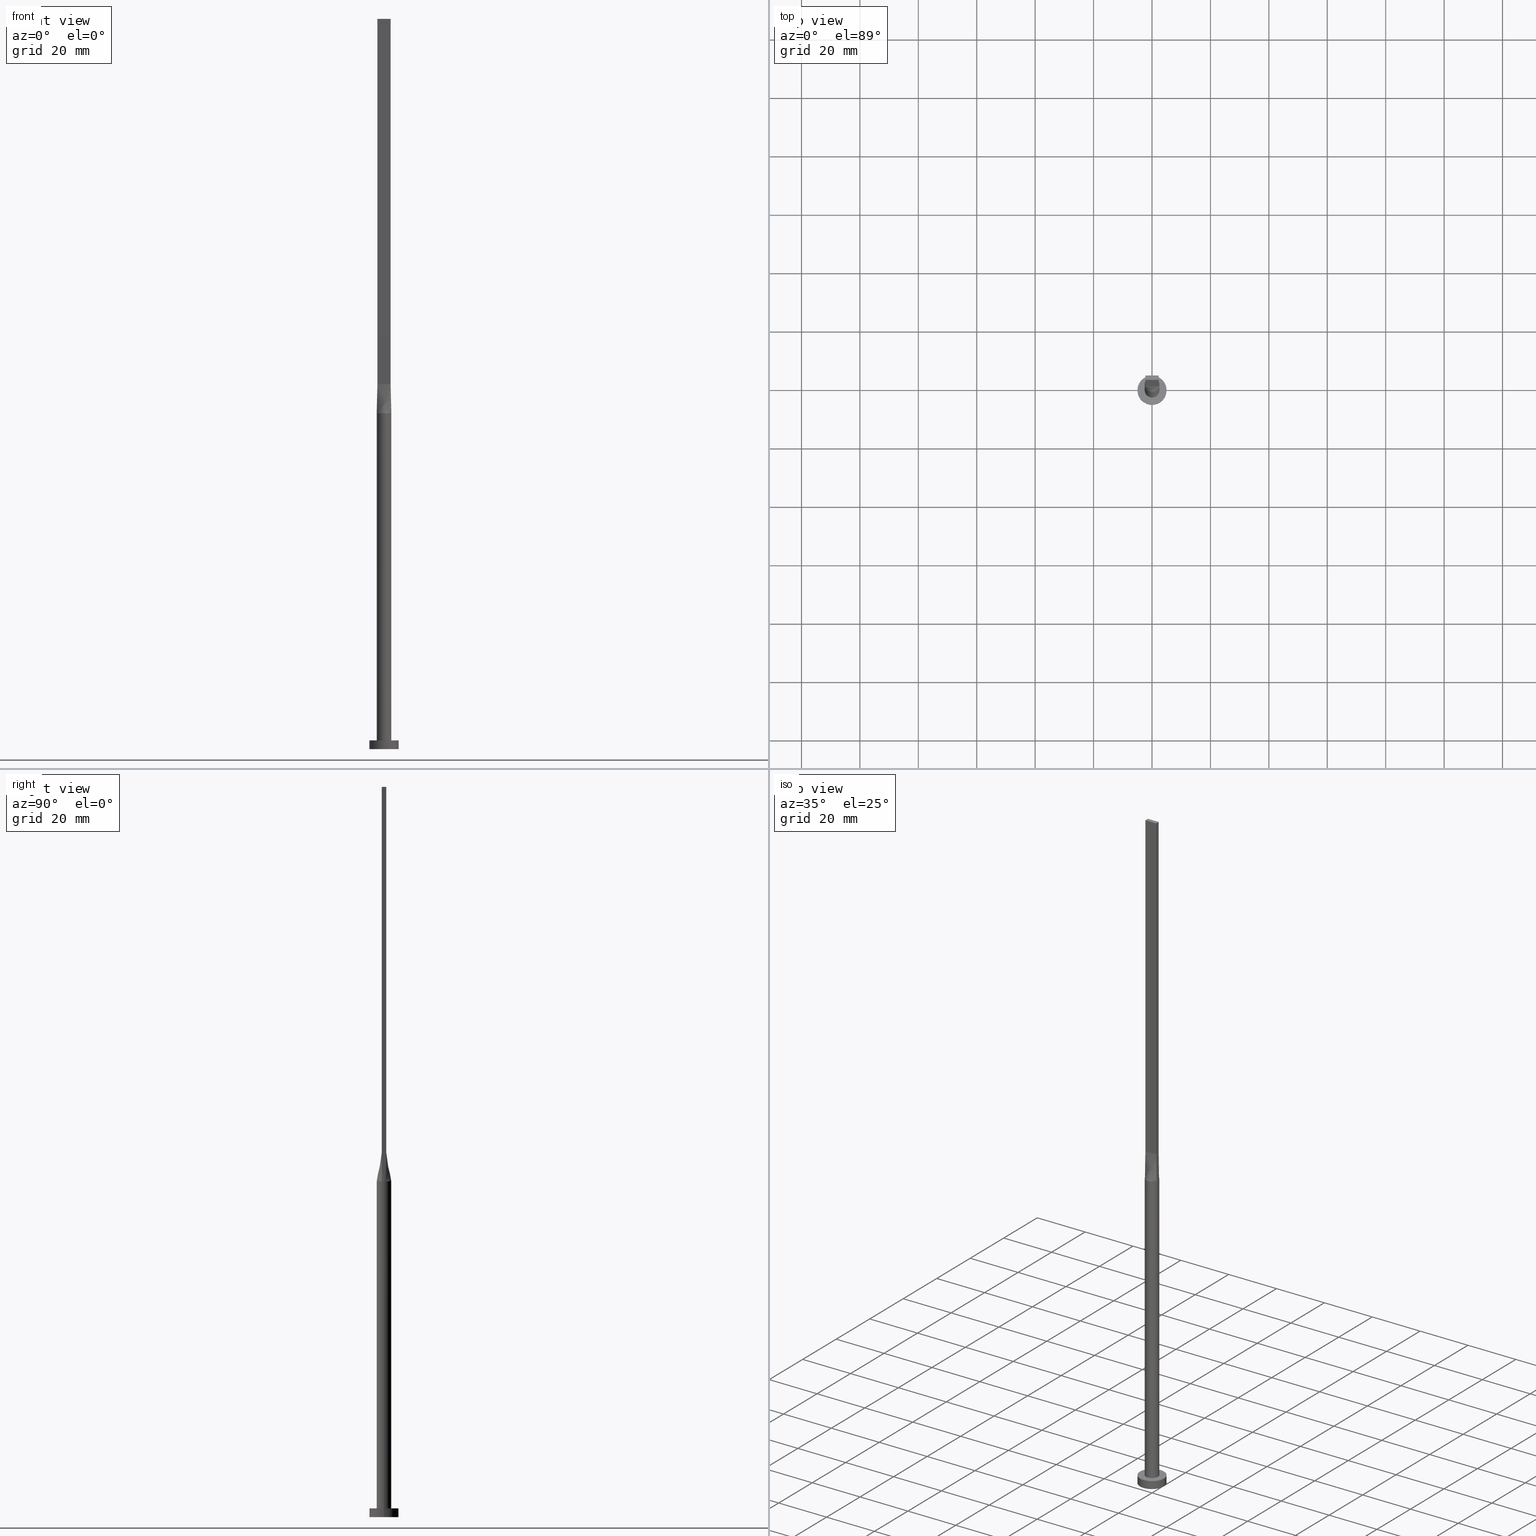
[diagram: canonical four-view strip — front | top / right | iso, engineering-drawing reading convention]
A machine part, canonical four-view strip (front | top / right | iso — engineering-drawing reading convention). The complete STEP part file that produces these views, byte-faithful:
ISO-10303-21;
HEADER;
FILE_DESCRIPTION (( 'STEP AP203' ),
    '1' );
FILE_NAME ('12eb.STEP',
    '2023-02-13T12:30:08',
    ( '' ),
    ( '' ),
    'SwSTEP 2.0',
    'SolidWorks 2019',
    '' );
FILE_SCHEMA (( 'CONFIG_CONTROL_DESIGN' ));
ENDSEC;

DATA;
#1 = CARTESIAN_POINT ( 'NONE',  ( 2.249999999999999556, 0.7500000000000002220, 250.0000000000000000 ) ) ;
#2 = CARTESIAN_POINT ( 'NONE',  ( -2.371795432964766359, 0.7905989074952441964, 115.0000000000000000 ) ) ;
#3 = LINE ( 'NONE', #265, #360 ) ;
#4 = CARTESIAN_POINT ( 'NONE',  ( 5.000000000000000000, 6.123233995736766282E-16, 0.000000000000000000 ) ) ;
#5 = CARTESIAN_POINT ( 'NONE',  ( 0.000000000000000000, 0.000000000000000000, 250.0000000000000000 ) ) ;
#6 = CARTESIAN_POINT ( 'NONE',  ( 0.000000000000000000, 0.000000000000000000, 3.000000000000000000 ) ) ;
#7 = ORIENTED_EDGE ( 'NONE', *, *, #296, .F. ) ;
#8 = ADVANCED_FACE ( 'NONE', ( #134 ), #189, .F. ) ;
#9 = CARTESIAN_POINT ( 'NONE',  ( -2.249999999999999556, 0.7500000000000002220, 250.0000000000000000 ) ) ;
#10 = DIRECTION ( 'NONE',  ( 0.000000000000000000, 0.000000000000000000, 1.000000000000000000 ) ) ;
#11 = PLANE ( 'NONE',  #472 ) ;
#12 = B_SPLINE_SURFACE_WITH_KNOTS ( 'NONE', 3, 1, ( 
 ( #367, #57 ),
 ( #315, #48 ),
 ( #144, #137 ),
 ( #494, #50 ),
 ( #536, #500 ),
 ( #183, #142 ),
 ( #100, #414 ),
 ( #405, #449 ),
 ( #358, #496 ),
 ( #412, #278 ),
 ( #94, #186 ),
 ( #543, #146 ),
 ( #365, #498 ),
 ( #59, #369 ),
 ( #317, #539 ),
 ( #547, #541 ),
 ( #320, #103 ),
 ( #55, #456 ) ),
 .UNSPECIFIED., .F., .F., .F.,
 ( 4, 2, 2, 2, 2, 2, 2, 2, 4 ),
 ( 2, 2 ),
 ( 0.000000000000000000, 0.1250000000000000555, 0.2500000000000001110, 0.3750000000000001110, 0.5000000000000001110, 0.6250000000000000000, 0.7500000000000000000, 0.8749999999999998890, 1.000000000000000000 ),
 ( 0.000000000000000000, 1.000000000000000000 ),
 .UNSPECIFIED. ) ;
#13 = FACE_OUTER_BOUND ( 'NONE', #45, .T. ) ;
#14 =( GEOMETRIC_REPRESENTATION_CONTEXT ( 3 ) GLOBAL_UNCERTAINTY_ASSIGNED_CONTEXT ( ( #87 ) ) GLOBAL_UNIT_ASSIGNED_CONTEXT ( ( #421, #512, #63 ) ) REPRESENTATION_CONTEXT ( 'NONE', 'WORKASPACE' ) );
#15 = CARTESIAN_POINT ( 'NONE',  ( -0.3003163416900526128, 2.499999999999999112, 115.0000000000000426 ) ) ;
#16 = PRODUCT_RELATED_PRODUCT_CATEGORY ( 'detail', '', ( #345 ) ) ;
#17 = CYLINDRICAL_SURFACE ( 'NONE', #577, 5.000000000000000000 ) ;
#18 = CARTESIAN_POINT ( 'NONE',  ( 5.000000000000000000, 6.123233995736766282E-16, 3.000000000000000000 ) ) ;
#19 = DIRECTION ( 'NONE',  ( -0.000000000000000000, -0.000000000000000000, -1.000000000000000000 ) ) ;
#20 = DIRECTION ( 'NONE',  ( 1.000000000000000000, -2.891205793294678819E-16, 0.000000000000000000 ) ) ;
#21 = CARTESIAN_POINT ( 'NONE',  ( 2.309208245126284975, 0.9780694150420948807, 114.9999999999999858 ) ) ;
#22 = VECTOR ( 'NONE', #403, 1000.000000000000114 ) ;
#23 = CARTESIAN_POINT ( 'NONE',  ( 2.249999999999999556, 0.7500000000000002220, 250.0000000000000000 ) ) ;
#24 = ORIENTED_EDGE ( 'NONE', *, *, #382, .F. ) ;
#25 = CARTESIAN_POINT ( 'NONE',  ( -0.3750000000000012212, 0.7500000000000003331, 125.0000000000000000 ) ) ;
#26 = ADVANCED_FACE ( 'NONE', ( #191 ), #53, .T. ) ;
#27 = CARTESIAN_POINT ( 'NONE',  ( 2.500000000000000000, 3.061616997868383141E-16, 3.000000000000000000 ) ) ;
#28 = VERTEX_POINT ( 'NONE', #232 ) ;
#29 = APPLICATION_PROTOCOL_DEFINITION ( 'international standard', 'config_control_design', 1994, #270 ) ;
#30 = CARTESIAN_POINT ( 'NONE',  ( 2.455041578459617568, 0.5405694150420948807, 115.0000000000000142 ) ) ;
#31 = ORIENTED_EDGE ( 'NONE', *, *, #485, .T. ) ;
#32 = CALENDAR_DATE ( 2023, 13, 2 ) ;
#33 = AXIS2_PLACEMENT_3D ( 'NONE', #363, #443, #409 ) ;
#34 = VECTOR ( 'NONE', #362, 1000.000000000000114 ) ;
#35 = VECTOR ( 'NONE', #429, 1000.000000000000000 ) ;
#36 = DIRECTION ( 'NONE',  ( -0.000000000000000000, -0.000000000000000000, -1.000000000000000000 ) ) ;
#37 = EDGE_CURVE ( 'NONE', #527, #249, #96, .T. ) ;
#38 = ORIENTED_EDGE ( 'NONE', *, *, #254, .T. ) ;
#39 = PERSON_AND_ORGANIZATION ( #95, #578 ) ;
#40 = CARTESIAN_POINT ( 'NONE',  ( 2.310854122563142266, -0.7702847075210476069, 120.0000000000000000 ) ) ;
#41 = ORIENTED_EDGE ( 'NONE', *, *, #371, .T. ) ;
#42 = ORIENTED_EDGE ( 'NONE', *, *, #276, .F. ) ;
#43 = COORDINATED_UNIVERSAL_TIME_OFFSET ( 1, 0, .AHEAD. ) ;
#44 = VECTOR ( 'NONE', #269, 1000.000000000000000 ) ;
#45 = EDGE_LOOP ( 'NONE', ( #420, #305, #175, #366, #118, #221 ) ) ;
#46 = EDGE_CURVE ( 'NONE', #214, #28, #215, .T. ) ;
#47 = ORIENTED_EDGE ( 'NONE', *, *, #178, .T. ) ;
#48 = CARTESIAN_POINT ( 'NONE',  ( -2.062500000000000000, -0.7499999999999995559, 125.0000000000000000 ) ) ;
#49 = ORIENTED_EDGE ( 'NONE', *, *, #268, .T. ) ;
#50 = CARTESIAN_POINT ( 'NONE',  ( -1.500000000000000444, -0.7499999999999995559, 125.0000000000000000 ) ) ;
#51 = VECTOR ( 'NONE', #61, 1000.000000000000000 ) ;
#52 = EDGE_CURVE ( 'NONE', #561, #434, #228, .T. ) ;
#53 = PLANE ( 'NONE',  #225 ) ;
#54 = AXIS2_PLACEMENT_3D ( 'NONE', #253, #241, #69 ) ;
#55 = CARTESIAN_POINT ( 'NONE',  ( 2.371708245126284531, -0.7905694150420953248, 115.0000000000000000 ) ) ;
#56 = FACE_OUTER_BOUND ( 'NONE', #168, .T. ) ;
#57 = CARTESIAN_POINT ( 'NONE',  ( -2.250000000000000000, -0.7499999999999995559, 125.0000000000000000 ) ) ;
#58 = DIRECTION ( 'NONE',  ( 1.000000000000000000, 0.000000000000000000, 0.000000000000000000 ) ) ;
#59 = CARTESIAN_POINT ( 'NONE',  ( 1.799471046981195199, -1.755719709239274229, 115.0000000000000000 ) ) ;
#60 = EDGE_CURVE ( 'NONE', #392, #214, #284, .T. ) ;
#61 = DIRECTION ( 'NONE',  ( -0.000000000000000000, -0.000000000000000000, -1.000000000000000000 ) ) ;
#62 = SECURITY_CLASSIFICATION ( '', '', #400 ) ;
#63 =( NAMED_UNIT ( * ) SI_UNIT ( $, .STERADIAN. ) SOLID_ANGLE_UNIT ( ) );
#64 = CARTESIAN_POINT ( 'NONE',  ( 2.250000000000000000, -0.7499999999999997780, 250.0000000000000000 ) ) ;
#65 = ADVANCED_BREP_SHAPE_REPRESENTATION ( '12eb', ( #487, #248 ), #14 ) ;
#66 = PRODUCT_DEFINITION_SHAPE ( 'NONE', 'NONE',  #356 ) ;
#67 = CARTESIAN_POINT ( 'NONE',  ( -1.312500000000000666, 0.7500000000000002220, 125.0000000000000000 ) ) ;
#68 = CARTESIAN_POINT ( 'NONE',  ( -2.249999999999999556, 0.7500000000000002220, 250.0000000000000000 ) ) ;
#69 = DIRECTION ( 'NONE',  ( -1.000000000000000000, 0.000000000000000000, 0.000000000000000000 ) ) ;
#70 = LINE ( 'NONE', #336, #149 ) ;
#71 = B_SPLINE_SURFACE_WITH_KNOTS ( 'NONE', 3, 1, ( 
 ( #428, #154 ),
 ( #21, #74 ),
 ( #418, #116 ),
 ( #206, #470 ),
 ( #552, #197 ),
 ( #328, #293 ),
 ( #200, #468 ),
 ( #466, #112 ),
 ( #376, #282 ),
 ( #15, #157 ),
 ( #250, #25 ),
 ( #373, #385 ),
 ( #381, #559 ),
 ( #120, #67 ),
 ( #209, #517 ),
 ( #562, #78 ),
 ( #299, #165 ),
 ( #331, #378 ) ),
 .UNSPECIFIED., .F., .F., .F.,
 ( 4, 2, 2, 2, 2, 2, 2, 2, 4 ),
 ( 2, 2 ),
 ( 0.000000000000000000, 0.1250000000000000000, 0.2500000000000000000, 0.3750000000000000000, 0.5000000000000000000, 0.6250000000000000000, 0.7500000000000000000, 0.8750000000000000000, 1.000000000000000000 ),
 ( 0.000000000000000000, 1.000000000000000000 ),
 .UNSPECIFIED. ) ;
#72 = EDGE_CURVE ( 'NONE', #249, #83, #404, .T. ) ;
#73 = CIRCLE ( 'NONE', #399, 5.000000000000000000 ) ;
#74 = CARTESIAN_POINT ( 'NONE',  ( 2.062499999999999112, 0.7500000000000002220, 125.0000000000000000 ) ) ;
#75 = LOCAL_TIME ( 13, 30, 8.000000000000000000, #388 ) ;
#76 = PLANE ( 'NONE',  #147 ) ;
#77 = ORIENTED_EDGE ( 'NONE', *, *, #151, .T. ) ;
#78 = CARTESIAN_POINT ( 'NONE',  ( -1.875000000000000000, 0.7500000000000002220, 125.0000000000000000 ) ) ;
#79 = FACE_OUTER_BOUND ( 'NONE', #301, .T. ) ;
#80 = ORIENTED_EDGE ( 'NONE', *, *, #406, .F. ) ;
#81 = EDGE_CURVE ( 'NONE', #83, #99, #3, .T. ) ;
#82 = DIRECTION ( 'NONE',  ( 1.000000000000000000, 0.000000000000000000, 0.000000000000000000 ) ) ;
#83 = VERTEX_POINT ( 'NONE', #497 ) ;
#84 = CARTESIAN_POINT ( 'NONE',  ( -2.249999999999999556, 0.7500000000000002220, 125.0000000000000000 ) ) ;
#85 = VERTEX_POINT ( 'NONE', #398 ) ;
#86 = DATE_AND_TIME ( #169, #139 ) ;
#87 = UNCERTAINTY_MEASURE_WITH_UNIT (LENGTH_MEASURE( 1.000000000000000082E-05 ), #421, 'distance_accuracy_value', 'NONE');
#88 = ORIENTED_EDGE ( 'NONE', *, *, #72, .T. ) ;
#89 = PERSON_AND_ORGANIZATION ( #95, #578 ) ;
#90 = VERTEX_POINT ( 'NONE', #579 ) ;
#91 = EDGE_CURVE ( 'NONE', #348, #99, #143, .T. ) ;
#92 = CALENDAR_DATE ( 2023, 13, 2 ) ;
#93 = ORIENTED_EDGE ( 'NONE', *, *, #501, .T. ) ;
#94 = CARTESIAN_POINT ( 'NONE',  ( 0.6000386972366476002, -2.444291348568452538, 115.0000000000000284 ) ) ;
#95 = PERSON ( 'NEUR�EN�', 'NEUR�EN�', 'NEUR�EN�', ('NEUR�EN�'), ('NEUR�EN�'), ('NEUR�EN�') ) ;
#96 = LINE ( 'NONE', #357, #138 ) ;
#97 = LINE ( 'NONE', #273, #34 ) ;
#98 = EDGE_CURVE ( 'NONE', #109, #434, #101, .T. ) ;
#99 = VERTEX_POINT ( 'NONE', #532 ) ;
#100 = CARTESIAN_POINT ( 'NONE',  ( -1.145194483530141305, -2.241235424885160477, 115.0000000000000284 ) ) ;
#101 = CIRCLE ( 'NONE', #259, 5.000000000000000000 ) ;
#102 = CARTESIAN_POINT ( 'NONE',  ( -0.3003163416900526128, 2.499999999999999112, 115.0000000000000426 ) ) ;
#103 = CARTESIAN_POINT ( 'NONE',  ( 2.062499999999999112, -0.7499999999999997780, 125.0000000000000000 ) ) ;
#104 = CARTESIAN_POINT ( 'NONE',  ( -0.6000386972366482663, 2.444291348568452094, 115.0000000000000142 ) ) ;
#105 = CARTESIAN_POINT ( 'NONE',  ( 2.499999999999999556, 3.110810548879990207E-17, 115.0000000000000142 ) ) ;
#106 = CARTESIAN_POINT ( 'NONE',  ( 0.6000386972366480443, 2.444291348568451649, 115.0000000000000426 ) ) ;
#107 = DIRECTION ( 'NONE',  ( -1.000000000000000000, 0.000000000000000000, 0.000000000000000000 ) ) ;
#108 = VECTOR ( 'NONE', #36, 1000.000000000000000 ) ;
#109 = VERTEX_POINT ( 'NONE', #230 ) ;
#110 = CYLINDRICAL_SURFACE ( 'NONE', #54, 2.500000000000000000 ) ;
#111 = PLANE ( 'NONE',  #424 ) ;
#112 = CARTESIAN_POINT ( 'NONE',  ( 0.3749999999999987232, 0.7500000000000003331, 125.0000000000000000 ) ) ;
#113 = EDGE_CURVE ( 'NONE', #303, #480, #554, .T. ) ;
#114 = LINE ( 'NONE', #84, #285 ) ;
#115 = ORIENTED_EDGE ( 'NONE', *, *, #81, .F. ) ;
#116 = CARTESIAN_POINT ( 'NONE',  ( 1.874999999999999112, 0.7500000000000002220, 125.0000000000000000 ) ) ;
#117 = DIRECTION ( 'NONE',  ( 0.000000000000000000, 0.000000000000000000, 1.000000000000000000 ) ) ;
#118 = ORIENTED_EDGE ( 'NONE', *, *, #60, .F. ) ;
#119 = CIRCLE ( 'NONE', #121, 2.500000000000000000 ) ;
#120 = CARTESIAN_POINT ( 'NONE',  ( -1.799471046981195199, 1.755719709239274229, 115.0000000000000000 ) ) ;
#121 = AXIS2_PLACEMENT_3D ( 'NONE', #127, #117, #82 ) ;
#122 = CARTESIAN_POINT ( 'NONE',  ( 2.499999999999999556, -0.2704627669472993157, 115.0000000000000284 ) ) ;
#123 = ORIENTED_EDGE ( 'NONE', *, *, #401, .T. ) ;
#124 = APPROVAL ( #439, 'NEUR�EN�' ) ;
#125 = DIRECTION ( 'NONE',  ( -0.000000000000000000, -0.000000000000000000, -1.000000000000000000 ) ) ;
#126 = VERTEX_POINT ( 'NONE', #537 ) ;
#127 = CARTESIAN_POINT ( 'NONE',  ( 0.000000000000000000, 0.000000000000000000, 115.0000000000000000 ) ) ;
#128 = VERTEX_POINT ( 'NONE', #407 ) ;
#129 = CIRCLE ( 'NONE', #370, 2.500000000000000000 ) ;
#130 = VECTOR ( 'NONE', #125, 1000.000000000000000 ) ;
#131 = ORIENTED_EDGE ( 'NONE', *, *, #415, .T. ) ;
#132 = PERSON_AND_ORGANIZATION_ROLE ( 'classification_officer' ) ;
#133 = ADVANCED_FACE ( 'NONE', ( #56 ), #173, .T. ) ;
#134 = FACE_OUTER_BOUND ( 'NONE', #164, .T. ) ;
#135 = APPROVAL_ROLE ( '' ) ;
#136 = CARTESIAN_POINT ( 'NONE',  ( 0.000000000000000000, 0.000000000000000000, 115.0000000000000000 ) ) ;
#137 = CARTESIAN_POINT ( 'NONE',  ( -1.875000000000000444, -0.7499999999999995559, 125.0000000000000000 ) ) ;
#138 = VECTOR ( 'NONE', #535, 1000.000000000000000 ) ;
#139 = LOCAL_TIME ( 13, 30, 8.000000000000000000, #43 ) ;
#140 = EDGE_LOOP ( 'NONE', ( #77, #218, #484, #402 ) ) ;
#141 = EDGE_CURVE ( 'NONE', #214, #224, #464, .T. ) ;
#142 = CARTESIAN_POINT ( 'NONE',  ( -0.9375000000000008882, -0.7499999999999995559, 125.0000000000000000 ) ) ;
#143 = LINE ( 'NONE', #448, #187 ) ;
#144 = CARTESIAN_POINT ( 'NONE',  ( -2.218933079238281980, -1.174882007251999427, 115.0000000000000000 ) ) ;
#145 = DIRECTION ( 'NONE',  ( 1.000000000000000000, 0.000000000000000000, -0.000000000000000000 ) ) ;
#146 = CARTESIAN_POINT ( 'NONE',  ( 0.7499999999999984457, -0.7499999999999995559, 125.0000000000000000 ) ) ;
#147 = AXIS2_PLACEMENT_3D ( 'NONE', #426, #166, #339 ) ;
#148 = CARTESIAN_POINT ( 'NONE',  ( -2.455041578459617568, 0.5405694150420949917, 115.0000000000000000 ) ) ;
#149 = VECTOR ( 'NONE', #174, 1000.000000000000114 ) ;
#150 = DIRECTION ( 'NONE',  ( 0.000000000000000000, 0.000000000000000000, 1.000000000000000000 ) ) ;
#151 = EDGE_CURVE ( 'NONE', #348, #392, #483, .T. ) ;
#152 = DIRECTION ( 'NONE',  ( 2.891205793294678819E-16, 1.000000000000000000, 0.000000000000000000 ) ) ;
#153 = EDGE_LOOP ( 'NONE', ( #565, #258, #226, #380, #524, #31 ) ) ;
#154 = CARTESIAN_POINT ( 'NONE',  ( 2.249999999999999556, 0.7500000000000002220, 125.0000000000000000 ) ) ;
#155 = DIRECTION ( 'NONE',  ( 1.000000000000000000, 0.000000000000000000, 0.000000000000000000 ) ) ;
#156 = EDGE_LOOP ( 'NONE', ( #330, #495, #505, #115, #80 ) ) ;
#157 = CARTESIAN_POINT ( 'NONE',  ( -0.1875000000000012490, 0.7500000000000003331, 125.0000000000000000 ) ) ;
#158 = CARTESIAN_POINT ( 'NONE',  ( -1.390086206340438890, 2.094828891646495883, 115.0000000000000142 ) ) ;
#159 = VECTOR ( 'NONE', #311, 1000.000000000000000 ) ;
#160 = EDGE_CURVE ( 'NONE', #480, #348, #129, .T. ) ;
#161 = CARTESIAN_POINT ( 'NONE',  ( 0.000000000000000000, 0.000000000000000000, 0.000000000000000000 ) ) ;
#162 = ORIENTED_EDGE ( 'NONE', *, *, #485, .F. ) ;
#163 = CARTESIAN_POINT ( 'NONE',  ( 2.249999999999999556, 0.7500000000000002220, 250.0000000000000000 ) ) ;
#164 = EDGE_LOOP ( 'NONE', ( #123, #478, #7, #41 ) ) ;
#165 = CARTESIAN_POINT ( 'NONE',  ( -2.062499999999999556, 0.7500000000000002220, 125.0000000000000000 ) ) ;
#166 = DIRECTION ( 'NONE',  ( 0.000000000000000000, 0.000000000000000000, 1.000000000000000000 ) ) ;
#167 = CC_DESIGN_PERSON_AND_ORGANIZATION_ASSIGNMENT ( #39, #396, ( #356 ) ) ;
#168 = EDGE_LOOP ( 'NONE', ( #375, #507, #530, #465, #24 ) ) ;
#169 = CALENDAR_DATE ( 2023, 13, 2 ) ;
#170 = LINE ( 'NONE', #523, #567 ) ;
#171 = ORIENTED_EDGE ( 'NONE', *, *, #52, .F. ) ;
#172 = APPROVAL_STATUS ( 'not_yet_approved' ) ;
#173 = B_SPLINE_SURFACE_WITH_KNOTS ( 'NONE', 3, 1, ( 
 ( #245, #281 ),
 ( #148, #377 ),
 ( #323, #368 ),
 ( #243, #237 ),
 ( #325, #504 ),
 ( #467, #502 ) ),
 .UNSPECIFIED., .F., .F., .F.,
 ( 4, 2, 4 ),
 ( 2, 2 ),
 ( 0.000000000000000000, 0.5000000000000000000, 1.000000000000000000 ),
 ( 0.000000000000000000, 1.000000000000000000 ),
 .UNSPECIFIED. ) ;
#174 = DIRECTION ( 'NONE',  ( 0.01216982305197526239, -0.004056607683991671730, 0.9999177162851859979 ) ) ;
#175 = ORIENTED_EDGE ( 'NONE', *, *, #581, .T. ) ;
#176 = ORIENTED_EDGE ( 'NONE', *, *, #450, .T. ) ;
#177 = PERSON_AND_ORGANIZATION ( #95, #578 ) ;
#178 = EDGE_CURVE ( 'NONE', #434, #109, #454, .T. ) ;
#179 = VECTOR ( 'NONE', #324, 1000.000000000000000 ) ;
#180 = CARTESIAN_POINT ( 'NONE',  ( 0.000000000000000000, 0.000000000000000000, 0.000000000000000000 ) ) ;
#181 = DATE_AND_TIME ( #580, #391 ) ;
#182 = DIRECTION ( 'NONE',  ( 0.000000000000000000, 0.000000000000000000, 1.000000000000000000 ) ) ;
#183 = CARTESIAN_POINT ( 'NONE',  ( -1.390086206340439334, -2.094828891646495883, 115.0000000000000284 ) ) ;
#184 = ADVANCED_FACE ( 'NONE', ( #419 ), #413, .F. ) ;
#185 = DIRECTION ( 'NONE',  ( 0.000000000000000000, 0.000000000000000000, 1.000000000000000000 ) ) ;
#186 = CARTESIAN_POINT ( 'NONE',  ( 0.3749999999999985012, -0.7499999999999995559, 125.0000000000000000 ) ) ;
#187 = VECTOR ( 'NONE', #489, 1000.000000000000114 ) ;
#188 = AXIS2_PLACEMENT_3D ( 'NONE', #6, #190, #313 ) ;
#189 = PLANE ( 'NONE',  #390 ) ;
#190 = DIRECTION ( 'NONE',  ( -0.000000000000000000, -0.000000000000000000, -1.000000000000000000 ) ) ;
#191 = FACE_OUTER_BOUND ( 'NONE', #256, .T. ) ;
#192 = CARTESIAN_POINT ( 'NONE',  ( 0.000000000000000000, 0.000000000000000000, 3.000000000000000000 ) ) ;
#193 = CYLINDRICAL_SURFACE ( 'NONE', #247, 2.500000000000000000 ) ;
#194 = CARTESIAN_POINT ( 'NONE',  ( -2.250000000000000000, -0.7499999999999995559, 250.0000000000000000 ) ) ;
#195 = ADVANCED_FACE ( 'NONE', ( #557 ), #111, .F. ) ;
#196 = FACE_OUTER_BOUND ( 'NONE', #430, .T. ) ;
#197 = CARTESIAN_POINT ( 'NONE',  ( 1.312499999999998890, 0.7500000000000002220, 125.0000000000000000 ) ) ;
#198 = CARTESIAN_POINT ( 'NONE',  ( 0.000000000000000000, 0.000000000000000000, 3.000000000000000000 ) ) ;
#199 = ORIENTED_EDGE ( 'NONE', *, *, #415, .F. ) ;
#200 = CARTESIAN_POINT ( 'NONE',  ( 1.145194483530141749, 2.241235424885160921, 115.0000000000000142 ) ) ;
#201 = CARTESIAN_POINT ( 'NONE',  ( 1.390086206340439112, 2.094828891646494995, 115.0000000000000426 ) ) ;
#202 = FACE_OUTER_BOUND ( 'NONE', #140, .T. ) ;
#203 = CARTESIAN_POINT ( 'NONE',  ( 0.000000000000000000, 0.000000000000000000, 115.0000000000000000 ) ) ;
#204 = AXIS2_PLACEMENT_3D ( 'NONE', #161, #422, #155 ) ;
#205 = LOCAL_TIME ( 13, 30, 8.000000000000000000, #576 ) ;
#206 = CARTESIAN_POINT ( 'NONE',  ( 1.964343640889990361, 1.563766543189047287, 114.9999999999999858 ) ) ;
#207 = DIRECTION ( 'NONE',  ( -0.000000000000000000, -0.000000000000000000, -1.000000000000000000 ) ) ;
#208 = EDGE_LOOP ( 'NONE', ( #49, #337, #349, #176 ) ) ;
#209 = CARTESIAN_POINT ( 'NONE',  ( -1.964343640889990805, 1.563766543189048175, 115.0000000000000142 ) ) ;
#210 = CARTESIAN_POINT ( 'NONE',  ( 2.250000000000000000, -0.7499999999999997780, 125.0000000000000000 ) ) ;
#211 = ORIENTED_EDGE ( 'NONE', *, *, #509, .T. ) ;
#212 = APPROVAL_ROLE ( '' ) ;
#213 = LINE ( 'NONE', #23, #35 ) ;
#214 = VERTEX_POINT ( 'NONE', #417 ) ;
#215 = CIRCLE ( 'NONE', #350, 2.500000000000000000 ) ;
#216 = DATE_AND_TIME ( #92, #322 ) ;
#217 = LINE ( 'NONE', #163, #482 ) ;
#218 = ORIENTED_EDGE ( 'NONE', *, *, #382, .T. ) ;
#219 = APPROVAL_DATE_TIME ( #86, #432 ) ;
#220 = CARTESIAN_POINT ( 'NONE',  ( 2.371708245126284531, 0.7905694150420949917, 115.0000000000000000 ) ) ;
#221 = ORIENTED_EDGE ( 'NONE', *, *, #151, .F. ) ;
#222 = ADVANCED_FACE ( 'NONE', ( #13 ), #193, .T. ) ;
#223 = PERSON_AND_ORGANIZATION_ROLE ( 'design_owner' ) ;
#224 = VERTEX_POINT ( 'NONE', #379 ) ;
#225 = AXIS2_PLACEMENT_3D ( 'NONE', #5, #182, #145 ) ;
#226 = ORIENTED_EDGE ( 'NONE', *, *, #268, .F. ) ;
#227 = CC_DESIGN_DATE_AND_TIME_ASSIGNMENT ( #181, #525, ( #62 ) ) ;
#228 = LINE ( 'NONE', #451, #159 ) ;
#229 = CARTESIAN_POINT ( 'NONE',  ( 2.250000000000000000, -0.7499999999999997780, 250.0000000000000000 ) ) ;
#230 = CARTESIAN_POINT ( 'NONE',  ( -5.000000000000000000, 0.000000000000000000, 0.000000000000000000 ) ) ;
#231 = DIRECTION ( 'NONE',  ( 4.818676322157797621E-17, 1.000000000000000000, -0.000000000000000000 ) ) ;
#232 = CARTESIAN_POINT ( 'NONE',  ( -2.371775648085652222, -0.7905922034696525325, 115.0000000000000000 ) ) ;
#233 = DIRECTION ( 'NONE',  ( 1.000000000000000000, 0.000000000000000000, 0.000000000000000000 ) ) ;
#234 = CARTESIAN_POINT ( 'NONE',  ( -1.145194483530141527, 2.241235424885160921, 115.0000000000000426 ) ) ;
#235 = ADVANCED_FACE ( 'NONE', ( #196 ), #17, .T. ) ;
#236 = FACE_OUTER_BOUND ( 'NONE', #542, .T. ) ;
#237 = CARTESIAN_POINT ( 'NONE',  ( -2.249999999999999556, -0.2499999999999994726, 125.0000000000000000 ) ) ;
#238 = CARTESIAN_POINT ( 'NONE',  ( -2.249999999999999556, 0.7500000000000002220, 125.0000000000000000 ) ) ;
#239 = CARTESIAN_POINT ( 'NONE',  ( 2.371772892450305648, 0.7905912578404317159, 115.0000000000000000 ) ) ;
#240 = VECTOR ( 'NONE', #560, 1000.000000000000000 ) ;
#241 = DIRECTION ( 'NONE',  ( -0.000000000000000000, -0.000000000000000000, -1.000000000000000000 ) ) ;
#242 = EDGE_CURVE ( 'NONE', #446, #83, #286, .T. ) ;
#243 = CARTESIAN_POINT ( 'NONE',  ( -2.500000000000000888, -0.2704627669472985385, 115.0000000000000000 ) ) ;
#244 = PLANE ( 'NONE',  #340 ) ;
#245 = CARTESIAN_POINT ( 'NONE',  ( -2.371708245126284531, 0.7905694150420949917, 115.0000000000000000 ) ) ;
#246 = CARTESIAN_POINT ( 'NONE',  ( 2.250000000000000000, -0.4999999999999992784, 125.0000000000000000 ) ) ;
#247 = AXIS2_PLACEMENT_3D ( 'NONE', #203, #19, #499 ) ;
#248 = AXIS2_PLACEMENT_3D ( 'NONE', #310, #570, #308 ) ;
#249 = VERTEX_POINT ( 'NONE', #383 ) ;
#250 = CARTESIAN_POINT ( 'NONE',  ( -0.6000386972366482663, 2.444291348568452094, 115.0000000000000142 ) ) ;
#251 = CARTESIAN_POINT ( 'NONE',  ( -2.249999999999999556, 0.7500000000000002220, 250.0000000000000000 ) ) ;
#252 = ORIENTED_EDGE ( 'NONE', *, *, #581, .F. ) ;
#253 = CARTESIAN_POINT ( 'NONE',  ( 0.000000000000000000, 0.000000000000000000, 115.0000000000000000 ) ) ;
#254 = EDGE_CURVE ( 'NONE', #561, #90, #73, .T. ) ;
#255 = CARTESIAN_POINT ( 'NONE',  ( 2.249999999999999556, 0.2500000000000009437, 125.0000000000000000 ) ) ;
#256 = EDGE_LOOP ( 'NONE', ( #569, #327, #558, #131 ) ) ;
#257 = CARTESIAN_POINT ( 'NONE',  ( 2.500000000000000000, 3.061616997868383141E-16, 115.0000000000000000 ) ) ;
#258 = ORIENTED_EDGE ( 'NONE', *, *, #113, .F. ) ;
#259 = AXIS2_PLACEMENT_3D ( 'NONE', #180, #354, #491 ) ;
#260 = CALENDAR_DATE ( 2023, 13, 2 ) ;
#261 = DIRECTION ( 'NONE',  ( -1.000000000000000000, -0.000000000000000000, -0.000000000000000000 ) ) ;
#262 = ADVANCED_FACE ( 'NONE', ( #389, #79 ), #76, .T. ) ;
#263 = ORIENTED_EDGE ( 'NONE', *, *, #364, .F. ) ;
#264 = APPROVAL_DATE_TIME ( #566, #124 ) ;
#265 = CARTESIAN_POINT ( 'NONE',  ( 2.249999999999999556, 0.7500000000000002220, 125.0000000000000000 ) ) ;
#266 = DATE_AND_TIME ( #260, #205 ) ;
#267 = CARTESIAN_POINT ( 'NONE',  ( 0.000000000000000000, 0.000000000000000000, 115.0000000000000000 ) ) ;
#268 = EDGE_CURVE ( 'NONE', #28, #303, #119, .T. ) ;
#269 = DIRECTION ( 'NONE',  ( 1.000000000000000000, -4.818676322157797621E-17, 0.000000000000000000 ) ) ;
#270 = APPLICATION_CONTEXT ( 'configuration controlled 3d designs of mechanical parts and assemblies' ) ;
#271 = CYLINDRICAL_SURFACE ( 'NONE', #188, 5.000000000000000000 ) ;
#272 = DIRECTION ( 'NONE',  ( 0.000000000000000000, -1.000000000000000000, 0.000000000000000000 ) ) ;
#273 = CARTESIAN_POINT ( 'NONE',  ( -2.310854122563142266, -0.7702847075210469407, 120.0000000000000000 ) ) ;
#274 = DIRECTION ( 'NONE',  ( 0.000000000000000000, 0.000000000000000000, 1.000000000000000000 ) ) ;
#275 = CARTESIAN_POINT ( 'NONE',  ( 0.000000000000000000, 0.000000000000000000, 3.000000000000000000 ) ) ;
#276 = EDGE_CURVE ( 'NONE', #128, #126, #519, .T. ) ;
#277 = CARTESIAN_POINT ( 'NONE',  ( 2.218933079238281980, 1.174882007252000315, 115.0000000000000284 ) ) ;
#278 = CARTESIAN_POINT ( 'NONE',  ( 0.1874999999999984734, -0.7499999999999995559, 125.0000000000000000 ) ) ;
#279 = CARTESIAN_POINT ( 'NONE',  ( -1.964343640889990805, 1.563766543189048175, 115.0000000000000142 ) ) ;
#280 = DIRECTION ( 'NONE',  ( 1.000000000000000000, 0.000000000000000000, 0.000000000000000000 ) ) ;
#281 = CARTESIAN_POINT ( 'NONE',  ( -2.249999999999999556, 0.7500000000000002220, 125.0000000000000000 ) ) ;
#282 = CARTESIAN_POINT ( 'NONE',  ( 0.1874999999999986955, 0.7500000000000003331, 125.0000000000000000 ) ) ;
#283 = EDGE_CURVE ( 'NONE', #90, #109, #515, .T. ) ;
#284 = CIRCLE ( 'NONE', #33, 2.500000000000000000 ) ;
#285 = VECTOR ( 'NONE', #261, 1000.000000000000000 ) ;
#286 = LINE ( 'NONE', #64, #321 ) ;
#287 = CC_DESIGN_APPROVAL ( #124, ( #62 ) ) ;
#288 = EDGE_LOOP ( 'NONE', ( #575, #486, #199, #387 ) ) ;
#289 = DIRECTION ( 'NONE',  ( 1.000000000000000000, 0.000000000000000000, 0.000000000000000000 ) ) ;
#290 = CARTESIAN_POINT ( 'NONE',  ( -2.500000000000000000, 0.000000000000000000, 115.0000000000000000 ) ) ;
#291 = DIRECTION ( 'NONE',  ( 1.000000000000000000, -4.818676322157797621E-17, 0.000000000000000000 ) ) ;
#292 = APPLICATION_CONTEXT ( 'configuration controlled 3d designs of mechanical parts and assemblies' ) ;
#293 = CARTESIAN_POINT ( 'NONE',  ( 0.9374999999999988898, 0.7500000000000003331, 125.0000000000000000 ) ) ;
#294 = B_SPLINE_SURFACE_WITH_KNOTS ( 'NONE', 3, 1, ( 
 ( #526, #210 ),
 ( #564, #246 ),
 ( #122, #571 ),
 ( #479, #255 ),
 ( #30, #433 ),
 ( #220, #568 ) ),
 .UNSPECIFIED., .F., .F., .F.,
 ( 4, 2, 4 ),
 ( 2, 2 ),
 ( 0.000000000000000000, 0.5000000000000000000, 1.000000000000000000 ),
 ( 0.000000000000000000, 1.000000000000000000 ),
 .UNSPECIFIED. ) ;
#295 = CARTESIAN_POINT ( 'NONE',  ( 0.000000000000000000, 0.000000000000000000, 3.000000000000000000 ) ) ;
#296 = EDGE_CURVE ( 'NONE', #85, #128, #213, .T. ) ;
#297 = CIRCLE ( 'NONE', #518, 5.000000000000000000 ) ;
#298 = ORIENTED_EDGE ( 'NONE', *, *, #283, .F. ) ;
#299 = CARTESIAN_POINT ( 'NONE',  ( -2.309208245126284975, 0.9780694150420951027, 115.0000000000000284 ) ) ;
#300 = CARTESIAN_POINT ( 'NONE',  ( -5.000000000000000000, 0.000000000000000000, 3.000000000000000000 ) ) ;
#301 = EDGE_LOOP ( 'NONE', ( #211, #38 ) ) ;
#302 = DIRECTION ( 'NONE',  ( -0.000000000000000000, -0.000000000000000000, -1.000000000000000000 ) ) ;
#303 = VERTEX_POINT ( 'NONE', #386 ) ;
#304 = DIRECTION ( 'NONE',  ( 0.000000000000000000, 0.000000000000000000, 1.000000000000000000 ) ) ;
#305 = ORIENTED_EDGE ( 'NONE', *, *, #335, .T. ) ;
#306 = DATE_TIME_ROLE ( 'creation_date' ) ;
#307 = ORIENTED_EDGE ( 'NONE', *, *, #509, .F. ) ;
#308 = DIRECTION ( 'NONE',  ( 1.000000000000000000, 0.000000000000000000, 0.000000000000000000 ) ) ;
#309 = DIRECTION ( 'NONE',  ( -2.891205793294678326E-16, 1.000000000000000000, -0.000000000000000000 ) ) ;
#310 = CARTESIAN_POINT ( 'NONE',  ( 0.000000000000000000, 0.000000000000000000, 0.000000000000000000 ) ) ;
#311 = DIRECTION ( 'NONE',  ( -0.000000000000000000, -0.000000000000000000, -1.000000000000000000 ) ) ;
#312 = CLOSED_SHELL ( 'NONE', ( #222, #235, #444, #262, #184, #551, #423, #318, #133, #563, #8, #195, #460, #573, #26 ) ) ;
#313 = DIRECTION ( 'NONE',  ( -1.000000000000000000, 0.000000000000000000, 0.000000000000000000 ) ) ;
#314 = VERTEX_POINT ( 'NONE', #27 ) ;
#315 = CARTESIAN_POINT ( 'NONE',  ( -2.309208245126285419, -0.9780694150420946587, 114.9999999999999858 ) ) ;
#316 = CARTESIAN_POINT ( 'NONE',  ( -2.250000000000000000, -0.7499999999999995559, 125.0000000000000000 ) ) ;
#317 = CARTESIAN_POINT ( 'NONE',  ( 1.964343640889991249, -1.563766543189047953, 115.0000000000000426 ) ) ;
#318 = ADVANCED_FACE ( 'NONE', ( #477 ), #294, .T. ) ;
#319 = DIRECTION ( 'NONE',  ( 1.000000000000000000, 0.000000000000000000, 0.000000000000000000 ) ) ;
#320 = CARTESIAN_POINT ( 'NONE',  ( 2.309208245126284087, -0.9780694150420953248, 115.0000000000000000 ) ) ;
#321 = VECTOR ( 'NONE', #302, 1000.000000000000000 ) ;
#322 = LOCAL_TIME ( 13, 30, 8.000000000000000000, #488 ) ;
#323 = CARTESIAN_POINT ( 'NONE',  ( -2.500000000000000888, 0.2704627669472991491, 115.0000000000000284 ) ) ;
#324 = DIRECTION ( 'NONE',  ( -0.000000000000000000, -0.000000000000000000, -1.000000000000000000 ) ) ;
#325 = CARTESIAN_POINT ( 'NONE',  ( -2.455041578459618012, -0.5405694150420945476, 115.0000000000000142 ) ) ;
#326 = CC_DESIGN_PERSON_AND_ORGANIZATION_ASSIGNMENT ( #393, #352, ( #538 ) ) ;
#327 = ORIENTED_EDGE ( 'NONE', *, *, #276, .T. ) ;
#328 = CARTESIAN_POINT ( 'NONE',  ( 1.390086206340439112, 2.094828891646494995, 115.0000000000000426 ) ) ;
#329 = DIRECTION ( 'NONE',  ( -0.000000000000000000, -0.000000000000000000, -1.000000000000000000 ) ) ;
#330 = ORIENTED_EDGE ( 'NONE', *, *, #113, .T. ) ;
#331 = CARTESIAN_POINT ( 'NONE',  ( -2.371708245126284531, 0.7905694150420944366, 115.0000000000000000 ) ) ;
#332 = CARTESIAN_POINT ( 'NONE',  ( 0.000000000000000000, 0.000000000000000000, 115.0000000000000000 ) ) ;
#333 = LINE ( 'NONE', #513, #351 ) ;
#334 = EDGE_LOOP ( 'NONE', ( #441, #263, #42, #93 ) ) ;
#335 = EDGE_CURVE ( 'NONE', #480, #314, #342, .T. ) ;
#336 = CARTESIAN_POINT ( 'NONE',  ( -2.310854122563142266, 0.7702847075210473848, 120.0000000000000000 ) ) ;
#337 = ORIENTED_EDGE ( 'NONE', *, *, #406, .T. ) ;
#338 = CARTESIAN_POINT ( 'NONE',  ( 2.250000000000000000, -0.7499999999999997780, 250.0000000000000000 ) ) ;
#339 = DIRECTION ( 'NONE',  ( 1.000000000000000000, 0.000000000000000000, -0.000000000000000000 ) ) ;
#340 = AXIS2_PLACEMENT_3D ( 'NONE', #338, #514, #508 ) ;
#341 = EDGE_LOOP ( 'NONE', ( #171, #307, #453, #343 ) ) ;
#342 = LINE ( 'NONE', #257, #556 ) ;
#343 = ORIENTED_EDGE ( 'NONE', *, *, #98, .T. ) ;
#344 = EDGE_CURVE ( 'NONE', #126, #446, #170, .T. ) ;
#345 = PRODUCT ( '12eb', '12eb', '', ( #435 ) ) ;
#346 = COORDINATED_UNIVERSAL_TIME_OFFSET ( 1, 0, .AHEAD. ) ;
#347 = CARTESIAN_POINT ( 'NONE',  ( -2.250000000000000000, -0.7499999999999995559, 250.0000000000000000 ) ) ;
#348 = VERTEX_POINT ( 'NONE', #436 ) ;
#349 = ORIENTED_EDGE ( 'NONE', *, *, #72, .F. ) ;
#350 = AXIS2_PLACEMENT_3D ( 'NONE', #136, #274, #319 ) ;
#351 = VECTOR ( 'NONE', #469, 1000.000000000000000 ) ;
#352 = PERSON_AND_ORGANIZATION_ROLE ( 'creator' ) ;
#353 = DESIGN_CONTEXT ( 'detailed design', #270, 'design' ) ;
#354 = DIRECTION ( 'NONE',  ( 0.000000000000000000, 0.000000000000000000, 1.000000000000000000 ) ) ;
#355 = APPROVAL_STATUS ( 'not_yet_approved' ) ;
#356 = PRODUCT_DEFINITION ( 'NEZN�M�', '', #538, #353 ) ;
#357 = CARTESIAN_POINT ( 'NONE',  ( -2.249999999999999556, 0.7500000000000002220, 125.0000000000000000 ) ) ;
#358 = CARTESIAN_POINT ( 'NONE',  ( -0.3003163416900532234, -2.499999999999999556, 115.0000000000000142 ) ) ;
#359 = DIRECTION ( 'NONE',  ( 1.000000000000000000, -4.440892098500626162E-15, 0.000000000000000000 ) ) ;
#360 = VECTOR ( 'NONE', #309, 1000.000000000000000 ) ;
#361 = APPROVAL_PERSON_ORGANIZATION ( #177, #432, #445 ) ;
#362 = DIRECTION ( 'NONE',  ( -0.01216982305197526239, -0.004056607683991735915, -0.9999177162851859979 ) ) ;
#363 = CARTESIAN_POINT ( 'NONE',  ( 0.000000000000000000, 0.000000000000000000, 115.0000000000000000 ) ) ;
#364 = EDGE_CURVE ( 'NONE', #126, #249, #481, .T. ) ;
#365 = CARTESIAN_POINT ( 'NONE',  ( 1.390086206340438890, -2.094828891646495883, 115.0000000000000142 ) ) ;
#366 = ORIENTED_EDGE ( 'NONE', *, *, #141, .F. ) ;
#367 = CARTESIAN_POINT ( 'NONE',  ( -2.371708245126284975, -0.7905694150420944366, 115.0000000000000000 ) ) ;
#368 = CARTESIAN_POINT ( 'NONE',  ( -2.249999999999999556, 0.2500000000000004441, 125.0000000000000000 ) ) ;
#369 = CARTESIAN_POINT ( 'NONE',  ( 1.312499999999998890, -0.7499999999999997780, 125.0000000000000000 ) ) ;
#370 = AXIS2_PLACEMENT_3D ( 'NONE', #332, #457, #58 ) ;
#371 = EDGE_CURVE ( 'NONE', #85, #99, #217, .T. ) ;
#372 = CARTESIAN_POINT ( 'NONE',  ( 1.145194483530141749, 2.241235424885160921, 115.0000000000000142 ) ) ;
#373 = CARTESIAN_POINT ( 'NONE',  ( -1.145194483530141527, 2.241235424885160921, 115.0000000000000426 ) ) ;
#374 = CARTESIAN_POINT ( 'NONE',  ( -2.218933079238281536, 1.174882007251999871, 115.0000000000000284 ) ) ;
#375 = ORIENTED_EDGE ( 'NONE', *, *, #60, .T. ) ;
#376 = CARTESIAN_POINT ( 'NONE',  ( 0.3003163416900527238, 2.499999999999999556, 115.0000000000000142 ) ) ;
#377 = CARTESIAN_POINT ( 'NONE',  ( -2.249999999999999556, 0.5000000000000003331, 125.0000000000000000 ) ) ;
#378 = CARTESIAN_POINT ( 'NONE',  ( -2.249999999999999556, 0.7500000000000002220, 125.0000000000000000 ) ) ;
#379 = CARTESIAN_POINT ( 'NONE',  ( -2.500000000000000000, 0.000000000000000000, 3.000000000000000000 ) ) ;
#380 = ORIENTED_EDGE ( 'NONE', *, *, #46, .F. ) ;
#381 = CARTESIAN_POINT ( 'NONE',  ( -1.390086206340438890, 2.094828891646495883, 115.0000000000000142 ) ) ;
#382 = EDGE_CURVE ( 'NONE', #392, #527, #70, .T. ) ;
#383 = CARTESIAN_POINT ( 'NONE',  ( -2.250000000000000000, -0.7499999999999995559, 125.0000000000000000 ) ) ;
#384 = ORIENTED_EDGE ( 'NONE', *, *, #242, .F. ) ;
#385 = CARTESIAN_POINT ( 'NONE',  ( -0.7500000000000009992, 0.7500000000000002220, 125.0000000000000000 ) ) ;
#386 = CARTESIAN_POINT ( 'NONE',  ( 2.371798206859841329, -0.7905998626979697796, 115.0000000000000000 ) ) ;
#387 = ORIENTED_EDGE ( 'NONE', *, *, #242, .T. ) ;
#388 = COORDINATED_UNIVERSAL_TIME_OFFSET ( 1, 0, .AHEAD. ) ;
#389 = FACE_BOUND ( 'NONE', #395, .T. ) ;
#390 = AXIS2_PLACEMENT_3D ( 'NONE', #1, #272, #540 ) ;
#391 = LOCAL_TIME ( 13, 30, 8.000000000000000000, #346 ) ;
#392 = VERTEX_POINT ( 'NONE', #2 ) ;
#393 = PERSON_AND_ORGANIZATION ( #95, #578 ) ;
#394 = DIRECTION ( 'NONE',  ( -0.000000000000000000, -0.000000000000000000, -1.000000000000000000 ) ) ;
#395 = EDGE_LOOP ( 'NONE', ( #162, #252 ) ) ;
#396 = PERSON_AND_ORGANIZATION_ROLE ( 'creator' ) ;
#397 = EDGE_LOOP ( 'NONE', ( #474, #438 ) ) ;
#398 = CARTESIAN_POINT ( 'NONE',  ( 2.249999999999999556, 0.7500000000000002220, 250.0000000000000000 ) ) ;
#399 = AXIS2_PLACEMENT_3D ( 'NONE', #295, #304, #473 ) ;
#400 = SECURITY_CLASSIFICATION_LEVEL ( 'unclassified' ) ;
#401 = EDGE_CURVE ( 'NONE', #99, #527, #114, .T. ) ;
#402 = ORIENTED_EDGE ( 'NONE', *, *, #91, .F. ) ;
#403 = DIRECTION ( 'NONE',  ( -0.01216982305197522075, 0.004056607683991800967, 0.9999177162851859979 ) ) ;
#404 = LINE ( 'NONE', #316, #44 ) ;
#405 = CARTESIAN_POINT ( 'NONE',  ( -0.6000386972366480443, -2.444291348568451649, 114.9999999999999858 ) ) ;
#406 = EDGE_CURVE ( 'NONE', #303, #83, #440, .T. ) ;
#407 = CARTESIAN_POINT ( 'NONE',  ( -2.249999999999999556, 0.7500000000000002220, 250.0000000000000000 ) ) ;
#408 = DIRECTION ( 'NONE',  ( -1.000000000000000000, 4.818676322157797621E-17, 0.000000000000000000 ) ) ;
#409 = DIRECTION ( 'NONE',  ( 1.000000000000000000, 0.000000000000000000, 0.000000000000000000 ) ) ;
#410 = LINE ( 'NONE', #9, #179 ) ;
#411 = CARTESIAN_POINT ( 'NONE',  ( -2.309208245126284975, 0.9780694150420951027, 115.0000000000000284 ) ) ;
#412 = CARTESIAN_POINT ( 'NONE',  ( 0.3003163416900518912, -2.500000000000001332, 115.0000000000000426 ) ) ;
#413 = PLANE ( 'NONE',  #471 ) ;
#414 = CARTESIAN_POINT ( 'NONE',  ( -0.7500000000000008882, -0.7499999999999995559, 125.0000000000000000 ) ) ;
#415 = EDGE_CURVE ( 'NONE', #446, #85, #333, .T. ) ;
#416 = AXIS2_PLACEMENT_3D ( 'NONE', #555, #476, #289 ) ;
#417 = CARTESIAN_POINT ( 'NONE',  ( -2.500000000000000444, -1.570839010700814298E-16, 115.0000000000000142 ) ) ;
#418 = CARTESIAN_POINT ( 'NONE',  ( 2.218933079238281980, 1.174882007252000315, 115.0000000000000284 ) ) ;
#419 = FACE_OUTER_BOUND ( 'NONE', #397, .T. ) ;
#420 = ORIENTED_EDGE ( 'NONE', *, *, #160, .F. ) ;
#421 =( LENGTH_UNIT ( ) NAMED_UNIT ( * ) SI_UNIT ( .MILLI., .METRE. ) );
#422 = DIRECTION ( 'NONE',  ( 0.000000000000000000, 0.000000000000000000, 1.000000000000000000 ) ) ;
#423 = ADVANCED_FACE ( 'NONE', ( #452 ), #12, .T. ) ;
#424 = AXIS2_PLACEMENT_3D ( 'NONE', #68, #20, #152 ) ;
#425 = CIRCLE ( 'NONE', #447, 2.500000000000000000 ) ;
#426 = CARTESIAN_POINT ( 'NONE',  ( 0.000000000000000000, 0.000000000000000000, 3.000000000000000000 ) ) ;
#427 = ORIENTED_EDGE ( 'NONE', *, *, #254, .F. ) ;
#428 = CARTESIAN_POINT ( 'NONE',  ( 2.371708245126284531, 0.7905694150420949917, 115.0000000000000000 ) ) ;
#429 = DIRECTION ( 'NONE',  ( -1.000000000000000000, 0.000000000000000000, 0.000000000000000000 ) ) ;
#430 = EDGE_LOOP ( 'NONE', ( #427, #521, #47, #298 ) ) ;
#431 = APPROVAL_DATE_TIME ( #216, #520 ) ;
#432 = APPROVAL ( #172, 'NEUR�EN�' ) ;
#433 = CARTESIAN_POINT ( 'NONE',  ( 2.249999999999999556, 0.5000000000000006661, 125.0000000000000000 ) ) ;
#434 = VERTEX_POINT ( 'NONE', #4 ) ;
#435 = MECHANICAL_CONTEXT ( 'NONE', #292, 'mechanical' ) ;
#436 = CARTESIAN_POINT ( 'NONE',  ( 2.371772892450305648, 0.7905912578404317159, 115.0000000000000000 ) ) ;
#437 = CC_DESIGN_SECURITY_CLASSIFICATION ( #62, ( #538 ) ) ;
#438 = ORIENTED_EDGE ( 'NONE', *, *, #178, .F. ) ;
#439 = APPROVAL_STATUS ( 'not_yet_approved' ) ;
#440 = LINE ( 'NONE', #40, #22 ) ;
#441 = ORIENTED_EDGE ( 'NONE', *, *, #37, .T. ) ;
#442 = PERSON_AND_ORGANIZATION ( #95, #578 ) ;
#443 = DIRECTION ( 'NONE',  ( 0.000000000000000000, 0.000000000000000000, 1.000000000000000000 ) ) ;
#444 = ADVANCED_FACE ( 'NONE', ( #458 ), #271, .T. ) ;
#445 = APPROVAL_ROLE ( '' ) ;
#446 = VERTEX_POINT ( 'NONE', #229 ) ;
#447 = AXIS2_PLACEMENT_3D ( 'NONE', #275, #150, #233 ) ;
#448 = CARTESIAN_POINT ( 'NONE',  ( 2.310854122563142266, 0.7702847075210476069, 120.0000000000000000 ) ) ;
#449 = CARTESIAN_POINT ( 'NONE',  ( -0.3750000000000011657, -0.7499999999999995559, 125.0000000000000000 ) ) ;
#450 = EDGE_CURVE ( 'NONE', #249, #28, #97, .T. ) ;
#451 = CARTESIAN_POINT ( 'NONE',  ( 5.000000000000000000, 6.123233995736766282E-16, 3.000000000000000000 ) ) ;
#452 = FACE_OUTER_BOUND ( 'NONE', #208, .T. ) ;
#453 = ORIENTED_EDGE ( 'NONE', *, *, #283, .T. ) ;
#454 = CIRCLE ( 'NONE', #204, 5.000000000000000000 ) ;
#455 = APPROVAL_PERSON_ORGANIZATION ( #490, #520, #135 ) ;
#456 = CARTESIAN_POINT ( 'NONE',  ( 2.250000000000000000, -0.7499999999999997780, 125.0000000000000000 ) ) ;
#457 = DIRECTION ( 'NONE',  ( 0.000000000000000000, 0.000000000000000000, 1.000000000000000000 ) ) ;
#458 = FACE_OUTER_BOUND ( 'NONE', #341, .T. ) ;
#459 = CARTESIAN_POINT ( 'NONE',  ( 0.3003163416900527238, 2.499999999999999556, 115.0000000000000142 ) ) ;
#460 = ADVANCED_FACE ( 'NONE', ( #236 ), #11, .F. ) ;
#461 = FACE_OUTER_BOUND ( 'NONE', #153, .T. ) ;
#462 = DIRECTION ( 'NONE',  ( 1.000000000000000000, 0.000000000000000000, -0.000000000000000000 ) ) ;
#463 = APPROVAL_PERSON_ORGANIZATION ( #533, #124, #212 ) ;
#464 = LINE ( 'NONE', #290, #51 ) ;
#465 = ORIENTED_EDGE ( 'NONE', *, *, #37, .F. ) ;
#466 = CARTESIAN_POINT ( 'NONE',  ( 0.6000386972366480443, 2.444291348568451649, 115.0000000000000426 ) ) ;
#467 = CARTESIAN_POINT ( 'NONE',  ( -2.371708245126284975, -0.7905694150420946587, 115.0000000000000000 ) ) ;
#468 = CARTESIAN_POINT ( 'NONE',  ( 0.7499999999999986677, 0.7500000000000003331, 125.0000000000000000 ) ) ;
#469 = DIRECTION ( 'NONE',  ( -2.891205793294678326E-16, 1.000000000000000000, 0.000000000000000000 ) ) ;
#470 = CARTESIAN_POINT ( 'NONE',  ( 1.499999999999998668, 0.7500000000000002220, 125.0000000000000000 ) ) ;
#471 = AXIS2_PLACEMENT_3D ( 'NONE', #550, #10, #462 ) ;
#472 = AXIS2_PLACEMENT_3D ( 'NONE', #194, #231, #408 ) ;
#473 = DIRECTION ( 'NONE',  ( 1.000000000000000000, 0.000000000000000000, 0.000000000000000000 ) ) ;
#474 = ORIENTED_EDGE ( 'NONE', *, *, #98, .F. ) ;
#475 = CC_DESIGN_PERSON_AND_ORGANIZATION_ASSIGNMENT ( #89, #223, ( #345 ) ) ;
#476 = DIRECTION ( 'NONE',  ( 0.000000000000000000, 0.000000000000000000, 1.000000000000000000 ) ) ;
#477 = FACE_OUTER_BOUND ( 'NONE', #156, .T. ) ;
#478 = ORIENTED_EDGE ( 'NONE', *, *, #501, .F. ) ;
#479 = CARTESIAN_POINT ( 'NONE',  ( 2.499999999999999112, 0.2704627669472988161, 115.0000000000000000 ) ) ;
#480 = VERTEX_POINT ( 'NONE', #105 ) ;
#481 = LINE ( 'NONE', #347, #130 ) ;
#482 = VECTOR ( 'NONE', #394, 1000.000000000000000 ) ;
#483 = B_SPLINE_CURVE_WITH_KNOTS ( 'NONE', 3,
 ( #239, #545, #277, #511, #553, #201, #372, #106, #459, #102, #104, #234, #158, #506, #279, #374, #411, #548 ),
 .UNSPECIFIED., .F., .F.,
 ( 4, 2, 2, 2, 2, 2, 2, 2, 4 ),
 ( 0.000000000000000000, 0.1250000000000000000, 0.2500000000000000000, 0.3750000000000000000, 0.5000000000000000000, 0.6250000000000000000, 0.7500000000000000000, 0.8750000000000000000, 1.000000000000000000 ),
 .UNSPECIFIED. ) ;
#484 = ORIENTED_EDGE ( 'NONE', *, *, #401, .F. ) ;
#485 = EDGE_CURVE ( 'NONE', #224, #314, #425, .T. ) ;
#486 = ORIENTED_EDGE ( 'NONE', *, *, #371, .F. ) ;
#487 = MANIFOLD_SOLID_BREP ( 'P�idat vysunut�m5', #312 ) ;
#488 = COORDINATED_UNIVERSAL_TIME_OFFSET ( 1, 0, .AHEAD. ) ;
#489 = DIRECTION ( 'NONE',  ( -0.01216982305197526239, -0.004056607683991724639, 0.9999177162851859979 ) ) ;
#490 = PERSON_AND_ORGANIZATION ( #95, #578 ) ;
#491 = DIRECTION ( 'NONE',  ( 1.000000000000000000, 0.000000000000000000, 0.000000000000000000 ) ) ;
#492 = CIRCLE ( 'NONE', #416, 2.500000000000000000 ) ;
#493 = CC_DESIGN_PERSON_AND_ORGANIZATION_ASSIGNMENT ( #442, #132, ( #62 ) ) ;
#494 = CARTESIAN_POINT ( 'NONE',  ( -1.964343640889991249, -1.563766543189046843, 115.0000000000000142 ) ) ;
#495 = ORIENTED_EDGE ( 'NONE', *, *, #160, .T. ) ;
#496 = CARTESIAN_POINT ( 'NONE',  ( -0.1875000000000012768, -0.7499999999999995559, 125.0000000000000000 ) ) ;
#497 = CARTESIAN_POINT ( 'NONE',  ( 2.250000000000000000, -0.7499999999999997780, 125.0000000000000000 ) ) ;
#498 = CARTESIAN_POINT ( 'NONE',  ( 0.9374999999999986677, -0.7499999999999996669, 125.0000000000000000 ) ) ;
#499 = DIRECTION ( 'NONE',  ( -1.000000000000000000, 0.000000000000000000, 0.000000000000000000 ) ) ;
#500 = CARTESIAN_POINT ( 'NONE',  ( -1.312500000000000444, -0.7499999999999995559, 125.0000000000000000 ) ) ;
#501 = EDGE_CURVE ( 'NONE', #128, #527, #410, .T. ) ;
#502 = CARTESIAN_POINT ( 'NONE',  ( -2.250000000000000000, -0.7499999999999995559, 125.0000000000000000 ) ) ;
#503 = DIRECTION ( 'NONE',  ( 0.000000000000000000, 0.000000000000000000, 1.000000000000000000 ) ) ;
#504 = CARTESIAN_POINT ( 'NONE',  ( -2.250000000000000000, -0.4999999999999994449, 125.0000000000000000 ) ) ;
#505 = ORIENTED_EDGE ( 'NONE', *, *, #91, .T. ) ;
#506 = CARTESIAN_POINT ( 'NONE',  ( -1.799471046981195199, 1.755719709239274229, 115.0000000000000000 ) ) ;
#507 = ORIENTED_EDGE ( 'NONE', *, *, #46, .T. ) ;
#508 = DIRECTION ( 'NONE',  ( 2.891205793294678326E-16, -1.000000000000000000, 0.000000000000000000 ) ) ;
#509 = EDGE_CURVE ( 'NONE', #90, #561, #297, .T. ) ;
#510 = CC_DESIGN_APPROVAL ( #520, ( #356 ) ) ;
#511 = CARTESIAN_POINT ( 'NONE',  ( 1.964343640889990361, 1.563766543189047287, 114.9999999999999858 ) ) ;
#512 =( NAMED_UNIT ( * ) PLANE_ANGLE_UNIT ( ) SI_UNIT ( $, .RADIAN. ) );
#513 = CARTESIAN_POINT ( 'NONE',  ( 2.250000000000000000, -0.7499999999999997780, 250.0000000000000000 ) ) ;
#514 = DIRECTION ( 'NONE',  ( -1.000000000000000000, -2.891205793294678326E-16, 0.000000000000000000 ) ) ;
#515 = LINE ( 'NONE', #300, #108 ) ;
#516 = ORIENTED_EDGE ( 'NONE', *, *, #344, .F. ) ;
#517 = CARTESIAN_POINT ( 'NONE',  ( -1.500000000000000444, 0.7500000000000002220, 125.0000000000000000 ) ) ;
#518 = AXIS2_PLACEMENT_3D ( 'NONE', #192, #503, #280 ) ;
#519 = LINE ( 'NONE', #251, #240 ) ;
#520 = APPROVAL ( #355, 'NEUR�EN�' ) ;
#521 = ORIENTED_EDGE ( 'NONE', *, *, #52, .T. ) ;
#522 = SHAPE_DEFINITION_REPRESENTATION ( #66, #65 ) ;
#523 = CARTESIAN_POINT ( 'NONE',  ( -2.250000000000000000, -0.7499999999999995559, 250.0000000000000000 ) ) ;
#524 = ORIENTED_EDGE ( 'NONE', *, *, #141, .T. ) ;
#525 = DATE_TIME_ROLE ( 'classification_date' ) ;
#526 = CARTESIAN_POINT ( 'NONE',  ( 2.371708245126284531, -0.7905694150420953248, 115.0000000000000000 ) ) ;
#527 = VERTEX_POINT ( 'NONE', #238 ) ;
#528 = APPLICATION_PROTOCOL_DEFINITION ( 'international standard', 'config_control_design', 1994, #292 ) ;
#529 = CC_DESIGN_APPROVAL ( #432, ( #538 ) ) ;
#530 = ORIENTED_EDGE ( 'NONE', *, *, #450, .F. ) ;
#531 = PERSON_AND_ORGANIZATION_ROLE ( 'design_supplier' ) ;
#532 = CARTESIAN_POINT ( 'NONE',  ( 2.249999999999999556, 0.7500000000000002220, 125.0000000000000000 ) ) ;
#533 = PERSON_AND_ORGANIZATION ( #95, #578 ) ;
#534 = CC_DESIGN_DATE_AND_TIME_ASSIGNMENT ( #266, #306, ( #356 ) ) ;
#535 = DIRECTION ( 'NONE',  ( -2.891205793294678819E-16, -1.000000000000000000, 0.000000000000000000 ) ) ;
#536 = CARTESIAN_POINT ( 'NONE',  ( -1.799471046981195421, -1.755719709239273785, 115.0000000000000142 ) ) ;
#537 = CARTESIAN_POINT ( 'NONE',  ( -2.250000000000000000, -0.7499999999999995559, 250.0000000000000000 ) ) ;
#538 = PRODUCT_DEFINITION_FORMATION_WITH_SPECIFIED_SOURCE ( 'LIBOVOLN�', '', #345, .NOT_KNOWN. ) ;
#539 = CARTESIAN_POINT ( 'NONE',  ( 1.499999999999998668, -0.7499999999999997780, 125.0000000000000000 ) ) ;
#540 = DIRECTION ( 'NONE',  ( 0.000000000000000000, -0.000000000000000000, -1.000000000000000000 ) ) ;
#541 = CARTESIAN_POINT ( 'NONE',  ( 1.874999999999999112, -0.7499999999999997780, 125.0000000000000000 ) ) ;
#542 = EDGE_LOOP ( 'NONE', ( #88, #384, #516, #572 ) ) ;
#543 = CARTESIAN_POINT ( 'NONE',  ( 1.145194483530141083, -2.241235424885161365, 115.0000000000000284 ) ) ;
#544 = CC_DESIGN_PERSON_AND_ORGANIZATION_ASSIGNMENT ( #574, #531, ( #538 ) ) ;
#545 = CARTESIAN_POINT ( 'NONE',  ( 2.309208245126284975, 0.9780694150420948807, 114.9999999999999858 ) ) ;
#546 = AXIS2_PLACEMENT_3D ( 'NONE', #267, #185, #359 ) ;
#547 = CARTESIAN_POINT ( 'NONE',  ( 2.218933079238280204, -1.174882007251999871, 114.9999999999999858 ) ) ;
#548 = CARTESIAN_POINT ( 'NONE',  ( -2.371795432964766359, 0.7905989074952441964, 115.0000000000000000 ) ) ;
#549 = FACE_OUTER_BOUND ( 'NONE', #288, .T. ) ;
#550 = CARTESIAN_POINT ( 'NONE',  ( 0.000000000000000000, 0.000000000000000000, 0.000000000000000000 ) ) ;
#551 = ADVANCED_FACE ( 'NONE', ( #461 ), #110, .T. ) ;
#552 = CARTESIAN_POINT ( 'NONE',  ( 1.799471046981194977, 1.755719709239274007, 115.0000000000000142 ) ) ;
#553 = CARTESIAN_POINT ( 'NONE',  ( 1.799471046981194977, 1.755719709239274007, 115.0000000000000142 ) ) ;
#554 = CIRCLE ( 'NONE', #546, 2.500000000000000000 ) ;
#555 = CARTESIAN_POINT ( 'NONE',  ( 0.000000000000000000, 0.000000000000000000, 3.000000000000000000 ) ) ;
#556 = VECTOR ( 'NONE', #207, 1000.000000000000000 ) ;
#557 = FACE_OUTER_BOUND ( 'NONE', #334, .T. ) ;
#558 = ORIENTED_EDGE ( 'NONE', *, *, #344, .T. ) ;
#559 = CARTESIAN_POINT ( 'NONE',  ( -0.9375000000000009992, 0.7500000000000002220, 125.0000000000000000 ) ) ;
#560 = DIRECTION ( 'NONE',  ( -2.891205793294678819E-16, -1.000000000000000000, 0.000000000000000000 ) ) ;
#561 = VERTEX_POINT ( 'NONE', #18 ) ;
#562 = CARTESIAN_POINT ( 'NONE',  ( -2.218933079238281536, 1.174882007251999871, 115.0000000000000284 ) ) ;
#563 = ADVANCED_FACE ( 'NONE', ( #202 ), #71, .T. ) ;
#564 = CARTESIAN_POINT ( 'NONE',  ( 2.455041578459617568, -0.5405694150420953248, 115.0000000000000000 ) ) ;
#565 = ORIENTED_EDGE ( 'NONE', *, *, #335, .F. ) ;
#566 = DATE_AND_TIME ( #32, #75 ) ;
#567 = VECTOR ( 'NONE', #291, 1000.000000000000000 ) ;
#568 = CARTESIAN_POINT ( 'NONE',  ( 2.249999999999999556, 0.7500000000000002220, 125.0000000000000000 ) ) ;
#569 = ORIENTED_EDGE ( 'NONE', *, *, #296, .T. ) ;
#570 = DIRECTION ( 'NONE',  ( 0.000000000000000000, 0.000000000000000000, 1.000000000000000000 ) ) ;
#571 = CARTESIAN_POINT ( 'NONE',  ( 2.249999999999999556, -0.2499999999999990286, 125.0000000000000000 ) ) ;
#572 = ORIENTED_EDGE ( 'NONE', *, *, #364, .T. ) ;
#573 = ADVANCED_FACE ( 'NONE', ( #549 ), #244, .F. ) ;
#574 = PERSON_AND_ORGANIZATION ( #95, #578 ) ;
#575 = ORIENTED_EDGE ( 'NONE', *, *, #81, .T. ) ;
#576 = COORDINATED_UNIVERSAL_TIME_OFFSET ( 1, 0, .AHEAD. ) ;
#577 = AXIS2_PLACEMENT_3D ( 'NONE', #198, #329, #107 ) ;
#578 = ORGANIZATION ( 'NEUR�EN�', 'NEUR�EN�', '' ) ;
#579 = CARTESIAN_POINT ( 'NONE',  ( -5.000000000000000000, 0.000000000000000000, 3.000000000000000000 ) ) ;
#580 = CALENDAR_DATE ( 2023, 13, 2 ) ;
#581 = EDGE_CURVE ( 'NONE', #314, #224, #492, .T. ) ;
ENDSEC;
END-ISO-10303-21;
